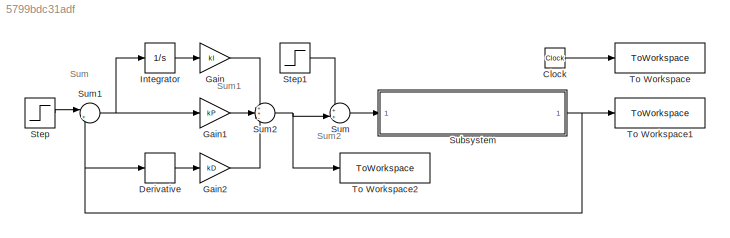
MODEL slx_5799bdc31adf
KIND model
CONFIG AbsTol = auto
CONFIG EnableMultiTasking = off
CONFIG FixedStep = 0.001
CONFIG MaxStep = auto
CONFIG MinStep = auto
CONFIG RelTol = 1e-3
CONFIG SampleTimeConstraint = Unconstrained
CONFIG Solver = ode4
CONFIG SolverName = ode4
CONFIG StartTime = 0.0
CONFIG StopTime = 3
BLOCK [Clock] Clock
BLOCK [Derivative] Derivative
BLOCK [Gain] Gain
  Gain = kI
  OutDataTypeStr = Inherit: Inherit via internal rule
  ParamDataTypeStr = Inherit: Inherit via internal rule
  SaturateOnIntegerOverflow = off
BLOCK [Gain] Gain1
  Gain = kP
  OutDataTypeStr = Inherit: Inherit via internal rule
  ParamDataTypeStr = Inherit: Inherit via internal rule
  SaturateOnIntegerOverflow = off
BLOCK [Gain] Gain2
  Gain = kD
  OutDataTypeStr = Inherit: Inherit via internal rule
  ParamDataTypeStr = Inherit: Inherit via internal rule
  SaturateOnIntegerOverflow = off
BLOCK [Integrator] Integrator
  Ports = [1, 1]
BLOCK [Step] Step
  After = rc
  SampleTime = 0
  Time = 0
BLOCK [Step] Step1
  After = dc
  SampleTime = 0
  Time = 1.5
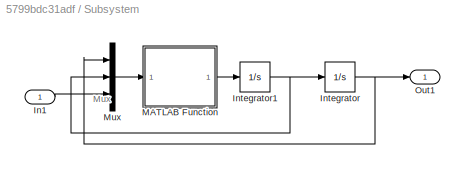
BLOCK [SubSystem] Subsystem
  Ports = [1, 1]
  RequestExecContextInheritance = off
BLOCK [Inport] Subsystem/In1
  IconDisplay = Port number
BLOCK [Integrator] Subsystem/Integrator
  Ports = [1, 1]
BLOCK [Integrator] Subsystem/Integrator1
  Ports = [1, 1]
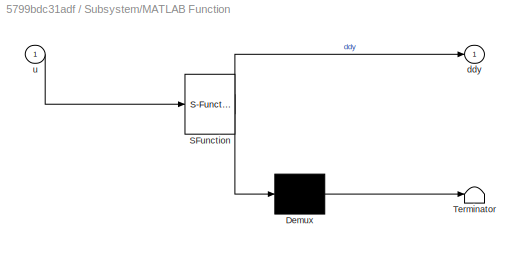
BLOCK [SubSystem] Subsystem/MATLAB Function
  ErrorFcn = Stateflow.Translate.translate
  PermitHierarchicalResolution = ExplicitOnly
  Ports = [1, 1]
  RequestExecContextInheritance = off
  SFBlockType = MATLAB Function
  TreatAsAtomicUnit = on
BLOCK [Demux] Subsystem/MATLAB Function/ Demux 
  Outputs = 1
  Ports = [1, 1]
BLOCK [S-Function] Subsystem/MATLAB Function/ SFunction 
  EnableBusSupport = on
  FunctionName = sf_sfun
  Parameters = J,M,c,g,l
  PortCounts = [1 2]
  Ports = [1, 2]
  SFcnIsStateOwnerBlock = off
  SFunctionDeploymentMode = off
  Tag = Stateflow S-Function 2
BLOCK [Terminator] Subsystem/MATLAB Function/ Terminator 
BLOCK [Outport] Subsystem/MATLAB Function/ddy
  IconDisplay = Port number
BLOCK [Inport] Subsystem/MATLAB Function/u
  IconDisplay = Port number
BLOCK [Mux] Subsystem/Mux
  DisplayOption = bar
  Inputs = 3
  Ports = [3, 1]
BLOCK [Outport] Subsystem/Out1
  IconDisplay = Port number
  VectorParamsAs1DForOutWhenUnconnected = off
BLOCK [Sum] Sum
  IconShape = round
  InputSameDT = off
  Inputs = ++|
  OutDataTypeStr = Inherit: Inherit via internal rule
  Ports = [2, 1]
  SaturateOnIntegerOverflow = off
BLOCK [Sum] Sum1
  IconShape = round
  InputSameDT = off
  Inputs = |+-
  OutDataTypeStr = Inherit: Inherit via internal rule
  Ports = [2, 1]
  SaturateOnIntegerOverflow = off
BLOCK [Sum] Sum2
  IconShape = round
  InputSameDT = off
  Inputs = ++-
  OutDataTypeStr = Inherit: Inherit via internal rule
  Ports = [3, 1]
  SaturateOnIntegerOverflow = off
BLOCK [ToWorkspace] To Workspace
  FixptAsFi = on
  MaxDataPoints = inf
  Ports = [1]
  SampleTime = -1
  VariableName = t
BLOCK [ToWorkspace] To Workspace1
  FixptAsFi = on
  MaxDataPoints = inf
  Ports = [1]
  SampleTime = -1
  VariableName = y
BLOCK [ToWorkspace] To Workspace2
  FixptAsFi = on
  MaxDataPoints = inf
  Ports = [1]
  SampleTime = -1
  VariableName = u
ANNOTATION (root): Sum2
ANNOTATION (root): Sum
ANNOTATION (root): Sum1
ANNOTATION Subsystem: Mux
LINE Clock:1 -> To Workspace:1
LINE Derivative:1 -> Gain2:1
LINE Gain1:1 -> Sum2:2
LINE Gain2:1 -> Sum2:3
LINE Gain:1 -> Sum2:1
LINE Integrator:1 -> Gain:1
LINE Step1:1 -> Sum:1
LINE Step:1 -> Sum1:1
LINE Subsystem/In1:1 -> Subsystem/Mux:3
NET Subsystem/Integrator1:1 -> Subsystem/Integrator:1, Subsystem/Mux:2
NET Subsystem/Integrator:1 -> Subsystem/Mux:1, Subsystem/Out1:1
LINE Subsystem/MATLAB Function:1 -> Subsystem/Integrator1:1
LINE Subsystem/Mux:1 -> Subsystem/MATLAB Function:1
NET Subsystem:1 -> Derivative:1, Sum1:2, To Workspace1:1
NET Sum1:1 -> Gain1:1, Integrator:1
NET Sum2:1 -> Sum:2, To Workspace2:1
LINE Sum:1 -> Subsystem:1
note: NET lines group one-source signal fan-out (src -> all destinations, sorted); 1:1 wires keep LINE
CHART Subsystem/MATLAB Function states=1 transitions=1
  STATE_LABEL 'eML_blk_kernel()'
  STATE_LABEL 'SCRIPT:\n% https://blogs.mathworks.com/japan-community/2021/04/15/matlab-function-block/?from=jp\n% にあるように，MATLAB エディタの「データの編集」で M, g, l, c, J の \n% 「Scope」の設定を「Input」から「Parameter」に変更\n% （「スコープ」の設定を「入力」から「パラメータ」に変更）\n\nfunction ddy = fcn(u,M,g,l,c,J)\n\nddy = (u(3) - M*g*l*sin(u(1)) - c*u(2))/J;\n'
